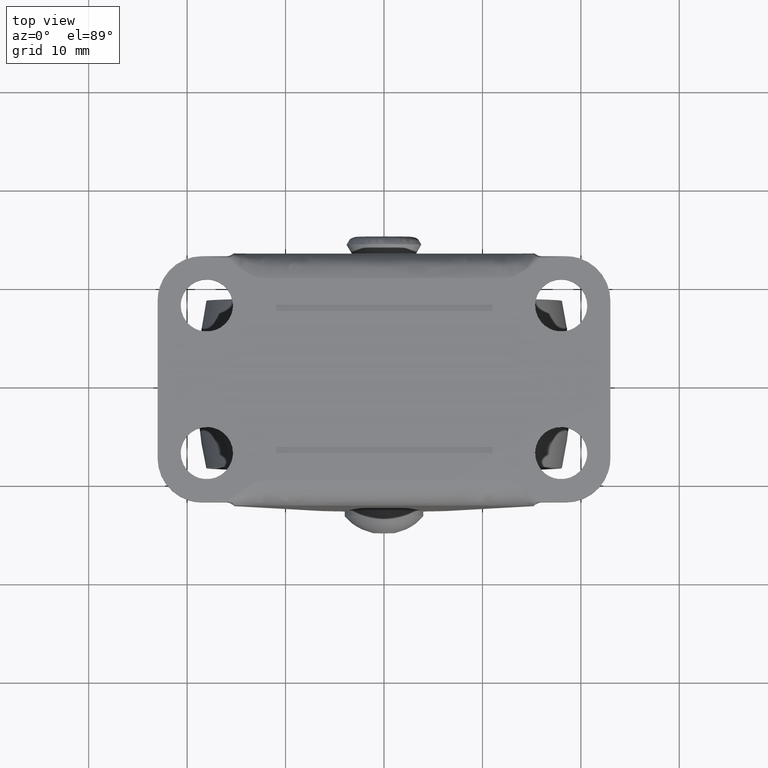
[diagram: clean part render]
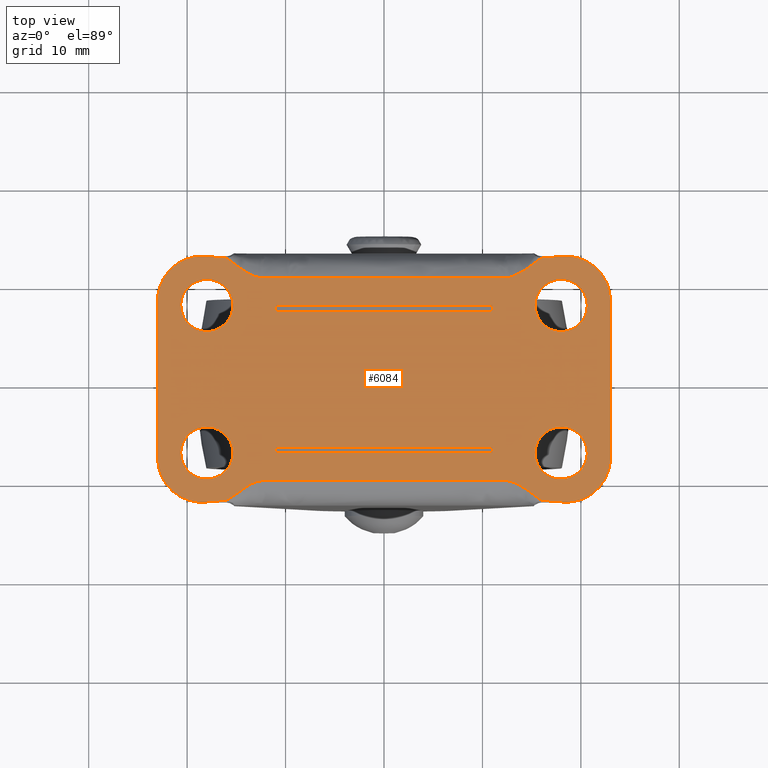
[diagram: same view with one face highlighted and labeled with its STEP entity id]
A machine part, top view. The second image highlights one B-rep face of the part: STEP entity #6084.
In plain terms, the highlighted face is a freeform B-spline surface patch.
Its self-contained STEP definition (entity closure, byte-faithful):
#2833=CARTESIAN_POINT('',(-18.312790721873618,-10.131475244859770,31.0));
#2834=VERTEX_POINT('',#2833);
#2835=CARTESIAN_POINT('',(-15.350000000000000,-7.500000000000000,31.0));
#2836=VERTEX_POINT('',#2835);
#2837=CARTESIAN_POINT('',(-18.312790721873625,-10.131475244859768,31.0));
#2838=CARTESIAN_POINT('',(-18.156943917111121,-10.149999999999997,30.999999999999996));
#2839=CARTESIAN_POINT('',(-18.0,-10.150000000000000,31.0));
#2840=CARTESIAN_POINT('',(-15.349999999999994,-10.149999999999999,31.000000000000007));
#2841=CARTESIAN_POINT('',(-15.350000000000000,-7.500000000000000,31.0));
#2849=(BOUNDED_CURVE()B_SPLINE_CURVE(2,(#2837,#2838,#2839,#2840,#2841),.UNSPECIFIED.,.F.,.U.)B_SPLINE_CURVE_WITH_KNOTS((3,2,3),(0.229562473511378,0.250000000000000,0.500000000000000),.UNSPECIFIED.)CURVE()GEOMETRIC_REPRESENTATION_ITEM()RATIONAL_B_SPLINE_CURVE((0.956026754179524,0.976055948328650,1.0,0.707106781186548,1.0))REPRESENTATION_ITEM(''));
#2850=EDGE_CURVE('',#2834,#2836,#2849,.T.);
#2852=CARTESIAN_POINT('',(-17.838221370159228,-4.854942784186543,31.0));
#2853=VERTEX_POINT('',#2852);
#2854=CARTESIAN_POINT('',(-15.350000000000000,-7.500000000000000,31.0));
#2855=CARTESIAN_POINT('',(-15.349999999999998,-5.007128922838514,31.000000000000004));
#2856=CARTESIAN_POINT('',(-17.838221370159228,-4.854942784186543,30.999999999999996));
#2864=(BOUNDED_CURVE()B_SPLINE_CURVE(2,(#2854,#2855,#2856),.UNSPECIFIED.,.F.,.U.)B_SPLINE_CURVE_WITH_KNOTS((3,3),(0.500000000000000,0.739332962232393),.UNSPECIFIED.)CURVE()GEOMETRIC_REPRESENTATION_ITEM()RATIONAL_B_SPLINE_CURVE((1.0,0.719603993294384,0.976072041652679))REPRESENTATION_ITEM(''));
#2865=EDGE_CURVE('',#2836,#2853,#2864,.T.);
#2932=CARTESIAN_POINT('',(-20.649999999999999,-7.500000000000000,31.0));
#2933=VERTEX_POINT('',#2932);
#2934=CARTESIAN_POINT('',(-20.649999999999999,-7.500000000000000,31.0));
#2935=CARTESIAN_POINT('',(-20.649999999999995,-9.853662493711292,30.999999999999996));
#2936=CARTESIAN_POINT('',(-18.312790721873625,-10.131475244859768,31.0));
#2944=(BOUNDED_CURVE()B_SPLINE_CURVE(2,(#2934,#2935,#2936),.UNSPECIFIED.,.F.,.U.)B_SPLINE_CURVE_WITH_KNOTS((3,3),(0.0,0.229562473511378),.UNSPECIFIED.)CURVE()GEOMETRIC_REPRESENTATION_ITEM()RATIONAL_B_SPLINE_CURVE((1.0,0.731050832857898,0.956026754179524))REPRESENTATION_ITEM(''));
#2945=EDGE_CURVE('',#2933,#2834,#2944,.T.);
#2979=CARTESIAN_POINT('',(-17.838221370159232,-4.854942784186543,31.0));
#2980=CARTESIAN_POINT('',(-17.919035177185130,-4.850000000000001,30.999999999999996));
#2981=CARTESIAN_POINT('',(-18.0,-4.850000000000001,31.0));
#2982=CARTESIAN_POINT('',(-20.650000000000002,-4.850000000000001,31.000000000000007));
#2983=CARTESIAN_POINT('',(-20.649999999999999,-7.500000000000000,31.0));
#2991=(BOUNDED_CURVE()B_SPLINE_CURVE(2,(#2979,#2980,#2981,#2982,#2983),.UNSPECIFIED.,.F.,.U.)B_SPLINE_CURVE_WITH_KNOTS((3,2,3),(0.739332962232392,0.750000000000000,1.0),.UNSPECIFIED.)CURVE()GEOMETRIC_REPRESENTATION_ITEM()RATIONAL_B_SPLINE_CURVE((0.976072041652678,0.987502787892163,1.0,0.707106781186548,1.0))REPRESENTATION_ITEM(''));
#2992=EDGE_CURVE('',#2853,#2933,#2991,.T.);
#3019=CARTESIAN_POINT('',(-18.312790721873629,4.868524755140232,31.0));
#3020=VERTEX_POINT('',#3019);
#3021=CARTESIAN_POINT('',(-15.350000000000000,7.500000000000000,31.0));
#3022=VERTEX_POINT('',#3021);
#3023=CARTESIAN_POINT('',(-18.312790721873629,4.868524755140232,31.000000000000004));
#3024=CARTESIAN_POINT('',(-18.156943917111125,4.850000000000001,31.0));
#3025=CARTESIAN_POINT('',(-18.0,4.850000000000001,31.0));
#3026=CARTESIAN_POINT('',(-15.349999999999994,4.850000000000001,31.000000000000007));
#3027=CARTESIAN_POINT('',(-15.350000000000000,7.500000000000000,31.0));
#3035=(BOUNDED_CURVE()B_SPLINE_CURVE(2,(#3023,#3024,#3025,#3026,#3027),.UNSPECIFIED.,.F.,.U.)B_SPLINE_CURVE_WITH_KNOTS((3,2,3),(0.229562473511378,0.250000000000000,0.500000000000000),.UNSPECIFIED.)CURVE()GEOMETRIC_REPRESENTATION_ITEM()RATIONAL_B_SPLINE_CURVE((0.956026754179524,0.976055948328649,1.0,0.707106781186548,1.0))REPRESENTATION_ITEM(''));
#3036=EDGE_CURVE('',#3020,#3022,#3035,.T.);
#3038=CARTESIAN_POINT('',(-17.838221370159228,10.145057215813461,31.0));
#3039=VERTEX_POINT('',#3038);
#3040=CARTESIAN_POINT('',(-15.350000000000000,7.500000000000000,31.0));
#3041=CARTESIAN_POINT('',(-15.349999999999998,9.992871077161485,31.000000000000004));
#3042=CARTESIAN_POINT('',(-17.838221370159228,10.145057215813457,30.999999999999996));
#3050=(BOUNDED_CURVE()B_SPLINE_CURVE(2,(#3040,#3041,#3042),.UNSPECIFIED.,.F.,.U.)B_SPLINE_CURVE_WITH_KNOTS((3,3),(0.500000000000000,0.739332962232393),.UNSPECIFIED.)CURVE()GEOMETRIC_REPRESENTATION_ITEM()RATIONAL_B_SPLINE_CURVE((1.0,0.719603993294384,0.976072041652679))REPRESENTATION_ITEM(''));
#3051=EDGE_CURVE('',#3022,#3039,#3050,.T.);
#3118=CARTESIAN_POINT('',(-20.649999999999999,7.500000000000000,31.0));
#3119=VERTEX_POINT('',#3118);
#3120=CARTESIAN_POINT('',(-20.649999999999999,7.500000000000000,31.0));
#3121=CARTESIAN_POINT('',(-20.649999999999995,5.146337506288706,30.999999999999996));
#3122=CARTESIAN_POINT('',(-18.312790721873625,4.868524755140232,31.0));
#3130=(BOUNDED_CURVE()B_SPLINE_CURVE(2,(#3120,#3121,#3122),.UNSPECIFIED.,.F.,.U.)B_SPLINE_CURVE_WITH_KNOTS((3,3),(0.0,0.229562473511378),.UNSPECIFIED.)CURVE()GEOMETRIC_REPRESENTATION_ITEM()RATIONAL_B_SPLINE_CURVE((1.0,0.731050832857898,0.956026754179524))REPRESENTATION_ITEM(''));
#3131=EDGE_CURVE('',#3119,#3020,#3130,.T.);
#3165=CARTESIAN_POINT('',(-17.838221370159232,10.145057215813457,31.000000000000004));
#3166=CARTESIAN_POINT('',(-17.919035177185130,10.149999999999999,30.999999999999993));
#3167=CARTESIAN_POINT('',(-18.0,10.150000000000000,31.0));
#3168=CARTESIAN_POINT('',(-20.650000000000002,10.149999999999999,31.000000000000007));
#3169=CARTESIAN_POINT('',(-20.649999999999999,7.500000000000000,31.0));
#3177=(BOUNDED_CURVE()B_SPLINE_CURVE(2,(#3165,#3166,#3167,#3168,#3169),.UNSPECIFIED.,.F.,.U.)B_SPLINE_CURVE_WITH_KNOTS((3,2,3),(0.739332962232392,0.750000000000000,1.0),.UNSPECIFIED.)CURVE()GEOMETRIC_REPRESENTATION_ITEM()RATIONAL_B_SPLINE_CURVE((0.976072041652678,0.987502787892163,1.0,0.707106781186548,1.0))REPRESENTATION_ITEM(''));
#3178=EDGE_CURVE('',#3039,#3119,#3177,.T.);
#3205=CARTESIAN_POINT('',(17.687209278126382,4.868524755140232,31.0));
#3206=VERTEX_POINT('',#3205);
#3207=CARTESIAN_POINT('',(20.649999999999999,7.500000000000000,31.0));
#3208=VERTEX_POINT('',#3207);
#3209=CARTESIAN_POINT('',(17.687209278126378,4.868524755140232,31.000000000000004));
#3210=CARTESIAN_POINT('',(17.843056082888872,4.850000000000001,30.999999999999996));
#3211=CARTESIAN_POINT('',(18.0,4.850000000000001,31.0));
#3212=CARTESIAN_POINT('',(20.650000000000002,4.850000000000001,31.000000000000007));
#3213=CARTESIAN_POINT('',(20.649999999999999,7.500000000000000,31.0));
#3221=(BOUNDED_CURVE()B_SPLINE_CURVE(2,(#3209,#3210,#3211,#3212,#3213),.UNSPECIFIED.,.F.,.U.)B_SPLINE_CURVE_WITH_KNOTS((3,2,3),(0.229562473511378,0.250000000000000,0.500000000000000),.UNSPECIFIED.)CURVE()GEOMETRIC_REPRESENTATION_ITEM()RATIONAL_B_SPLINE_CURVE((0.956026754179524,0.976055948328649,1.0,0.707106781186548,1.0))REPRESENTATION_ITEM(''));
#3222=EDGE_CURVE('',#3206,#3208,#3221,.T.);
#3224=CARTESIAN_POINT('',(18.161778629840772,10.145057215813461,31.0));
#3225=VERTEX_POINT('',#3224);
#3226=CARTESIAN_POINT('',(20.649999999999999,7.500000000000000,31.0));
#3227=CARTESIAN_POINT('',(20.650000000000002,9.992871077161485,31.000000000000004));
#3228=CARTESIAN_POINT('',(18.161778629840772,10.145057215813457,30.999999999999996));
#3236=(BOUNDED_CURVE()B_SPLINE_CURVE(2,(#3226,#3227,#3228),.UNSPECIFIED.,.F.,.U.)B_SPLINE_CURVE_WITH_KNOTS((3,3),(0.500000000000000,0.739332962232393),.UNSPECIFIED.)CURVE()GEOMETRIC_REPRESENTATION_ITEM()RATIONAL_B_SPLINE_CURVE((1.0,0.719603993294384,0.976072041652679))REPRESENTATION_ITEM(''));
#3237=EDGE_CURVE('',#3208,#3225,#3236,.T.);
#3304=CARTESIAN_POINT('',(15.350000000000000,7.500000000000000,31.0));
#3305=VERTEX_POINT('',#3304);
#3306=CARTESIAN_POINT('',(15.350000000000000,7.500000000000000,31.0));
#3307=CARTESIAN_POINT('',(15.349999999999996,5.146337506288711,31.000000000000007));
#3308=CARTESIAN_POINT('',(17.687209278126375,4.868524755140232,31.0));
#3316=(BOUNDED_CURVE()B_SPLINE_CURVE(2,(#3306,#3307,#3308),.UNSPECIFIED.,.F.,.U.)B_SPLINE_CURVE_WITH_KNOTS((3,3),(0.0,0.229562473511378),.UNSPECIFIED.)CURVE()GEOMETRIC_REPRESENTATION_ITEM()RATIONAL_B_SPLINE_CURVE((1.0,0.731050832857899,0.956026754179524))REPRESENTATION_ITEM(''));
#3317=EDGE_CURVE('',#3305,#3206,#3316,.T.);
#3351=CARTESIAN_POINT('',(18.161778629840772,10.145057215813457,30.999999999999996));
#3352=CARTESIAN_POINT('',(18.080964822814863,10.149999999999993,31.000000000000004));
#3353=CARTESIAN_POINT('',(18.0,10.150000000000000,31.0));
#3354=CARTESIAN_POINT('',(15.349999999999994,10.149999999999999,31.000000000000007));
#3355=CARTESIAN_POINT('',(15.350000000000000,7.500000000000000,31.0));
#3363=(BOUNDED_CURVE()B_SPLINE_CURVE(2,(#3351,#3352,#3353,#3354,#3355),.UNSPECIFIED.,.F.,.U.)B_SPLINE_CURVE_WITH_KNOTS((3,2,3),(0.739332962232393,0.750000000000000,1.0),.UNSPECIFIED.)CURVE()GEOMETRIC_REPRESENTATION_ITEM()RATIONAL_B_SPLINE_CURVE((0.976072041652679,0.987502787892163,1.0,0.707106781186548,1.0))REPRESENTATION_ITEM(''));
#3364=EDGE_CURVE('',#3225,#3305,#3363,.T.);
#3391=CARTESIAN_POINT('',(17.687209278126382,-10.131475244859770,31.0));
#3392=VERTEX_POINT('',#3391);
#3393=CARTESIAN_POINT('',(20.649999999999999,-7.500000000000000,31.0));
#3394=VERTEX_POINT('',#3393);
#3395=CARTESIAN_POINT('',(17.687209278126371,-10.131475244859768,31.0));
#3396=CARTESIAN_POINT('',(17.843056082888875,-10.149999999999997,30.999999999999996));
#3397=CARTESIAN_POINT('',(18.0,-10.150000000000000,31.0));
#3398=CARTESIAN_POINT('',(20.650000000000002,-10.149999999999999,31.000000000000007));
#3399=CARTESIAN_POINT('',(20.649999999999999,-7.500000000000000,31.0));
#3407=(BOUNDED_CURVE()B_SPLINE_CURVE(2,(#3395,#3396,#3397,#3398,#3399),.UNSPECIFIED.,.F.,.U.)B_SPLINE_CURVE_WITH_KNOTS((3,2,3),(0.229562473511378,0.250000000000000,0.500000000000000),.UNSPECIFIED.)CURVE()GEOMETRIC_REPRESENTATION_ITEM()RATIONAL_B_SPLINE_CURVE((0.956026754179524,0.976055948328650,1.0,0.707106781186548,1.0))REPRESENTATION_ITEM(''));
#3408=EDGE_CURVE('',#3392,#3394,#3407,.T.);
#3410=CARTESIAN_POINT('',(18.161778629840772,-4.854942784186543,31.0));
#3411=VERTEX_POINT('',#3410);
#3412=CARTESIAN_POINT('',(20.649999999999999,-7.500000000000000,31.0));
#3413=CARTESIAN_POINT('',(20.650000000000002,-5.007128922838514,31.000000000000004));
#3414=CARTESIAN_POINT('',(18.161778629840772,-4.854942784186543,30.999999999999996));
#3422=(BOUNDED_CURVE()B_SPLINE_CURVE(2,(#3412,#3413,#3414),.UNSPECIFIED.,.F.,.U.)B_SPLINE_CURVE_WITH_KNOTS((3,3),(0.500000000000000,0.739332962232393),.UNSPECIFIED.)CURVE()GEOMETRIC_REPRESENTATION_ITEM()RATIONAL_B_SPLINE_CURVE((1.0,0.719603993294384,0.976072041652679))REPRESENTATION_ITEM(''));
#3423=EDGE_CURVE('',#3394,#3411,#3422,.T.);
#3490=CARTESIAN_POINT('',(15.350000000000000,-7.500000000000000,31.0));
#3491=VERTEX_POINT('',#3490);
#3492=CARTESIAN_POINT('',(15.350000000000000,-7.500000000000000,31.0));
#3493=CARTESIAN_POINT('',(15.349999999999993,-9.853662493711292,30.999999999999996));
#3494=CARTESIAN_POINT('',(17.687209278126371,-10.131475244859768,31.0));
#3502=(BOUNDED_CURVE()B_SPLINE_CURVE(2,(#3492,#3493,#3494),.UNSPECIFIED.,.F.,.U.)B_SPLINE_CURVE_WITH_KNOTS((3,3),(0.0,0.229562473511378),.UNSPECIFIED.)CURVE()GEOMETRIC_REPRESENTATION_ITEM()RATIONAL_B_SPLINE_CURVE((1.0,0.731050832857898,0.956026754179524))REPRESENTATION_ITEM(''));
#3503=EDGE_CURVE('',#3491,#3392,#3502,.T.);
#3537=CARTESIAN_POINT('',(18.161778629840772,-4.854942784186543,30.999999999999996));
#3538=CARTESIAN_POINT('',(18.080964822814863,-4.850000000000001,31.000000000000004));
#3539=CARTESIAN_POINT('',(18.0,-4.850000000000001,31.0));
#3540=CARTESIAN_POINT('',(15.349999999999994,-4.850000000000001,31.000000000000007));
#3541=CARTESIAN_POINT('',(15.350000000000000,-7.500000000000000,31.0));
#3549=(BOUNDED_CURVE()B_SPLINE_CURVE(2,(#3537,#3538,#3539,#3540,#3541),.UNSPECIFIED.,.F.,.U.)B_SPLINE_CURVE_WITH_KNOTS((3,2,3),(0.739332962232393,0.750000000000000,1.0),.UNSPECIFIED.)CURVE()GEOMETRIC_REPRESENTATION_ITEM()RATIONAL_B_SPLINE_CURVE((0.976072041652679,0.987502787892163,1.0,0.707106781186548,1.0))REPRESENTATION_ITEM(''));
#3550=EDGE_CURVE('',#3411,#3491,#3549,.T.);
#4307=CARTESIAN_POINT('',(-15.964142842854351,12.300000000000001,31.0));
#4308=VERTEX_POINT('',#4307);
#4324=CARTESIAN_POINT('',(-18.500000000000000,12.500000000000000,31.0));
#4325=VERTEX_POINT('',#4324);
#4336=CARTESIAN_POINT('',(-15.964142842854351,12.300000000000001,31.0));
#4337=CARTESIAN_POINT('',(-16.384151414186089,12.301612027730590,31.0));
#4338=CARTESIAN_POINT('',(-16.804190988273461,12.367057069457900,31.0));
#4339=CARTESIAN_POINT('',(-17.224214769195601,12.399984829569480,31.0));
#4340=CARTESIAN_POINT('',(-17.649476512797079,12.433323219712991,31.0));
#4341=CARTESIAN_POINT('',(-18.074738256398511,12.466661609856491,31.0));
#4342=CARTESIAN_POINT('',(-18.500000000000000,12.500000000000000,31.0));
#4343=B_SPLINE_CURVE_WITH_KNOTS('',3,(#4336,#4337,#4338,#4339,#4340,#4341,#4342),.UNSPECIFIED.,.F.,.U.,(4,3,4),(0.006158516205735,0.500000000000000,1.0),.UNSPECIFIED.);
#4344=EDGE_CURVE('',#4308,#4325,#4343,.T.);
#4487=CARTESIAN_POINT('',(15.964142842854200,12.300000000000001,31.0));
#4488=VERTEX_POINT('',#4487);
#4521=CARTESIAN_POINT('',(15.964142842854200,12.300000000000001,31.0));
#4522=CARTESIAN_POINT('',(15.511861407879140,11.964925629788480,30.999999999999979));
#4523=CARTESIAN_POINT('',(15.059579972904080,11.629851259576951,31.000000000000011));
#4524=CARTESIAN_POINT('',(14.607298537929010,11.294776889365430,31.000000000000011));
#4525=CARTESIAN_POINT('',(14.385741908905979,11.130635843115829,31.000000000000011));
#4526=CARTESIAN_POINT('',(14.150449448904590,10.984890928707269,31.0));
#4527=CARTESIAN_POINT('',(13.915372177291781,10.841278085975910,31.0));
#4528=CARTESIAN_POINT('',(13.777721915578629,10.757185118366930,31.0));
#4529=CARTESIAN_POINT('',(13.633514898960200,10.683853875912639,31.0));
#4530=CARTESIAN_POINT('',(13.488876333202381,10.612753854443000,31.0));
#4531=CARTESIAN_POINT('',(13.116823397996979,10.429863685819249,30.999999999999989));
#4532=CARTESIAN_POINT('',(12.706289696635141,10.305846311783871,31.000004061068061));
#4533=CARTESIAN_POINT('',(12.289555121366140,10.302929370201980,30.999998709542229));
#4534=CARTESIAN_POINT('',(6.827798270337854,10.264699699292910,30.999928572014461));
#4535=CARTESIAN_POINT('',(1.365238646426925,10.341158914930880,30.999953488652910));
#4536=CARTESIAN_POINT('',(-4.096518208739660,10.302929349153080,30.999998283782119));
#4537=CARTESIAN_POINT('',(-6.827396635851608,10.283814566267470,31.000020681346719));
#4538=CARTESIAN_POINT('',(-9.558435617041745,10.287637469250480,30.999959751792439));
#4539=CARTESIAN_POINT('',(-12.289554872446489,10.302929359002039,30.999998709548649));
#4540=CARTESIAN_POINT('',(-12.685687898981341,10.305147359024099,31.000004360145500));
#4541=CARTESIAN_POINT('',(-13.072374911336331,10.419033238515070,31.0));
#4542=CARTESIAN_POINT('',(-13.429587845199270,10.584998504233040,31.0));
#4543=CARTESIAN_POINT('',(-13.934560261795850,10.819614536733290,31.0));
#4544=CARTESIAN_POINT('',(-14.394545896968699,11.137703681644680,31.0));
#4545=CARTESIAN_POINT('',(-14.843212241036589,11.464658990664031,31.0));
#4546=CARTESIAN_POINT('',(-15.219804861036080,11.739092226127990,31.0));
#4547=CARTESIAN_POINT('',(-15.588455725924881,12.024366267953640,31.0));
#4548=CARTESIAN_POINT('',(-15.964142842854351,12.300000000000001,31.0));
#4549=B_SPLINE_CURVE_WITH_KNOTS('',3,(#4521,#4522,#4523,#4524,#4525,#4526,#4527,#4528,#4529,#4530,#4531,#4532,#4533,#4534,#4535,#4536,#4537,#4538,#4539,#4540,#4541,#4542,#4543,#4544,#4545,#4546,#4547,#4548),.UNSPECIFIED.,.F.,.U.,(4,3,3,3,3,3,3,3,3,4),(0.0,1.688638495937405,2.515842585840058,3.000214633737721,4.246162014421257,20.575648566086461,28.740391840509840,29.924640553844789,31.598748286051400,33.003927491866072),.UNSPECIFIED.);
#4550=EDGE_CURVE('',#4488,#4308,#4549,.T.);
#4654=CARTESIAN_POINT('',(18.500000000000000,12.500000000000000,31.0));
#4655=VERTEX_POINT('',#4654);
#4656=CARTESIAN_POINT('',(18.500000000000000,12.500000000000000,31.0));
#4657=CARTESIAN_POINT('',(18.071408863903219,12.466640982033949,31.0));
#4658=CARTESIAN_POINT('',(17.642817727806449,12.433281964067911,31.0));
#4659=CARTESIAN_POINT('',(17.214226591709679,12.399922946101860,31.0));
#4660=CARTESIAN_POINT('',(16.797532973632588,12.367489961093421,31.0));
#4661=CARTESIAN_POINT('',(16.380804597317510,12.303548462719570,31.0));
#4662=CARTESIAN_POINT('',(15.964142842854200,12.300000000000001,31.0));
#4663=B_SPLINE_CURVE_WITH_KNOTS('',3,(#4656,#4657,#4658,#4659,#4660,#4661,#4662),.UNSPECIFIED.,.F.,.U.,(4,3,4),(0.0,0.500000000000000,0.986120200562185),.UNSPECIFIED.);
#4664=EDGE_CURVE('',#4655,#4488,#4663,.T.);
#4718=CARTESIAN_POINT('',(15.964142842854301,-12.300000000000001,31.0));
#4719=VERTEX_POINT('',#4718);
#4735=CARTESIAN_POINT('',(18.500000000000000,-12.500000000000000,31.0));
#4736=VERTEX_POINT('',#4735);
#4747=CARTESIAN_POINT('',(15.964142842854301,-12.300000000000001,31.0));
#4748=CARTESIAN_POINT('',(16.384151414186000,-12.301612027730609,31.0));
#4749=CARTESIAN_POINT('',(16.804190988273341,-12.367057069457911,31.0));
#4750=CARTESIAN_POINT('',(17.224214769195498,-12.399984829569471,31.0));
#4751=CARTESIAN_POINT('',(17.649476512797019,-12.433323219712991,31.0));
#4752=CARTESIAN_POINT('',(18.074738256398479,-12.466661609856491,31.0));
#4753=CARTESIAN_POINT('',(18.500000000000000,-12.500000000000000,31.0));
#4754=B_SPLINE_CURVE_WITH_KNOTS('',3,(#4747,#4748,#4749,#4750,#4751,#4752,#4753),.UNSPECIFIED.,.F.,.U.,(4,3,4),(0.006158516205813,0.500000000000000,1.0),.UNSPECIFIED.);
#4755=EDGE_CURVE('',#4719,#4736,#4754,.T.);
#4898=CARTESIAN_POINT('',(-15.964142842854450,-12.300000000000001,31.0));
#4899=VERTEX_POINT('',#4898);
#4932=CARTESIAN_POINT('',(-15.964142842854450,-12.300000000000001,31.0));
#4933=CARTESIAN_POINT('',(-15.742509219500960,-12.134309785737960,31.0));
#4934=CARTESIAN_POINT('',(-15.520875596147450,-11.968619571475889,31.0));
#4935=CARTESIAN_POINT('',(-15.299241972793910,-11.802929357213801,31.0));
#4936=CARTESIAN_POINT('',(-14.296013036583970,-11.052929357757989,31.0));
#4937=CARTESIAN_POINT('',(-13.292784100374041,-10.302929358302180,31.0));
#4938=CARTESIAN_POINT('',(-12.289555121002090,-10.302929357890360,31.0));
#4939=CARTESIAN_POINT('',(-4.096518456131290,-10.302929354527230,31.0));
#4940=CARTESIAN_POINT('',(4.096518208739607,-10.302929351164099,31.0));
#4941=CARTESIAN_POINT('',(12.289554873610591,-10.302929347800960,31.0));
#4942=CARTESIAN_POINT('',(13.292783852982531,-10.302929347389149,31.0));
#4943=CARTESIAN_POINT('',(14.296012875516491,-11.052929346021340,31.0));
#4944=CARTESIAN_POINT('',(15.299241898050450,-11.802929344653521,31.0));
#4945=CARTESIAN_POINT('',(15.520875546318379,-11.968619563102370,31.0));
#4946=CARTESIAN_POINT('',(15.742509194586329,-12.134309781551201,31.0));
#4947=CARTESIAN_POINT('',(15.964142842854301,-12.300000000000001,31.0));
#4948=B_SPLINE_CURVE_WITH_KNOTS('',3,(#4932,#4933,#4934,#4935,#4936,#4937,#4938,#4939,#4940,#4941,#4942,#4943,#4944,#4945,#4946,#4947),.UNSPECIFIED.,.F.,.U.,(4,3,3,3,3,4),(0.020218265075259,0.040201004498246,0.130653265804778,0.869346733141461,0.959798994447994,0.979781734397861),.UNSPECIFIED.);
#4949=EDGE_CURVE('',#4899,#4719,#4948,.T.);
#5053=CARTESIAN_POINT('',(-18.500000000000000,-12.500000000000000,31.0));
#5054=VERTEX_POINT('',#5053);
#5055=CARTESIAN_POINT('',(-18.500000000000000,-12.500000000000000,31.0));
#5056=CARTESIAN_POINT('',(-18.071408863903262,-12.466640982033949,31.0));
#5057=CARTESIAN_POINT('',(-17.642817727806470,-12.433281964067911,31.0));
#5058=CARTESIAN_POINT('',(-17.214226591709721,-12.399922946101849,31.0));
#5059=CARTESIAN_POINT('',(-16.797532973632709,-12.367489961093421,31.0));
#5060=CARTESIAN_POINT('',(-16.380804597317699,-12.303548462719579,31.0));
#5061=CARTESIAN_POINT('',(-15.964142842854450,-12.300000000000001,31.0));
#5062=B_SPLINE_CURVE_WITH_KNOTS('',3,(#5055,#5056,#5057,#5058,#5059,#5060,#5061),.UNSPECIFIED.,.F.,.U.,(4,3,4),(0.0,0.500000000000000,0.986120200562146),.UNSPECIFIED.);
#5063=EDGE_CURVE('',#5054,#4899,#5062,.T.);
#5516=CARTESIAN_POINT('',(11.0,7.500000000000000,31.0));
#5517=VERTEX_POINT('',#5516);
#5518=CARTESIAN_POINT('',(-11.0,7.500000000000000,31.0));
#5519=VERTEX_POINT('',#5518);
#5520=CARTESIAN_POINT('',(11.0,7.500000000000000,31.0));
#5521=CARTESIAN_POINT('',(-11.0,7.500000000000000,31.0));
#5522=QUASI_UNIFORM_CURVE('',1,(#5520,#5521),.UNSPECIFIED.,.F.,.U.);
#5523=EDGE_CURVE('',#5517,#5519,#5522,.T.);
#5544=CARTESIAN_POINT('',(11.0,6.900002000000000,31.0));
#5545=VERTEX_POINT('',#5544);
#5546=CARTESIAN_POINT('',(11.0,6.900002000000000,31.0));
#5547=CARTESIAN_POINT('',(11.0,7.500000000000000,31.0));
#5548=QUASI_UNIFORM_CURVE('',1,(#5546,#5547),.UNSPECIFIED.,.F.,.U.);
#5549=EDGE_CURVE('',#5545,#5517,#5548,.T.);
#5566=CARTESIAN_POINT('',(-11.0,6.900002000000000,31.0));
#5567=VERTEX_POINT('',#5566);
#5568=CARTESIAN_POINT('',(-11.0,6.900002000000000,31.0));
#5569=CARTESIAN_POINT('',(11.0,6.900002000000000,31.0));
#5570=QUASI_UNIFORM_CURVE('',1,(#5568,#5569),.UNSPECIFIED.,.F.,.U.);
#5571=EDGE_CURVE('',#5567,#5545,#5570,.T.);
#5588=CARTESIAN_POINT('',(-11.0,7.500000000000000,31.0));
#5589=CARTESIAN_POINT('',(-11.0,6.900002000000000,31.0));
#5590=QUASI_UNIFORM_CURVE('',1,(#5588,#5589),.UNSPECIFIED.,.F.,.U.);
#5591=EDGE_CURVE('',#5519,#5567,#5590,.T.);
#5640=CARTESIAN_POINT('',(-11.0,-7.500000000000000,31.0));
#5641=VERTEX_POINT('',#5640);
#5642=CARTESIAN_POINT('',(11.0,-7.500000000000000,31.0));
#5643=VERTEX_POINT('',#5642);
#5644=CARTESIAN_POINT('',(-11.0,-7.500000000000000,31.0));
#5645=CARTESIAN_POINT('',(11.0,-7.500000000000000,31.0));
#5646=QUASI_UNIFORM_CURVE('',1,(#5644,#5645),.UNSPECIFIED.,.F.,.U.);
#5647=EDGE_CURVE('',#5641,#5643,#5646,.T.);
#5668=CARTESIAN_POINT('',(-11.0,-6.900002000000000,31.0));
#5669=VERTEX_POINT('',#5668);
#5670=CARTESIAN_POINT('',(-11.0,-6.900002000000000,31.0));
#5671=CARTESIAN_POINT('',(-11.0,-7.500000000000000,31.0));
#5672=QUASI_UNIFORM_CURVE('',1,(#5670,#5671),.UNSPECIFIED.,.F.,.U.);
#5673=EDGE_CURVE('',#5669,#5641,#5672,.T.);
#5690=CARTESIAN_POINT('',(11.0,-6.900002000000000,31.0));
#5691=VERTEX_POINT('',#5690);
#5692=CARTESIAN_POINT('',(11.0,-6.900002000000000,31.0));
#5693=CARTESIAN_POINT('',(-11.0,-6.900002000000000,31.0));
#5694=QUASI_UNIFORM_CURVE('',1,(#5692,#5693),.UNSPECIFIED.,.F.,.U.);
#5695=EDGE_CURVE('',#5691,#5669,#5694,.T.);
#5712=CARTESIAN_POINT('',(11.0,-7.500000000000000,31.0));
#5713=CARTESIAN_POINT('',(11.0,-6.900002000000000,31.0));
#5714=QUASI_UNIFORM_CURVE('',1,(#5712,#5713),.UNSPECIFIED.,.F.,.U.);
#5715=EDGE_CURVE('',#5643,#5691,#5714,.T.);
#5965=CARTESIAN_POINT('',(-25.297699910843079,13.748749951545150,31.0));
#5966=CARTESIAN_POINT('',(25.297701144659229,13.748749951545150,31.0));
#5967=CARTESIAN_POINT('',(-25.297699910843079,-13.748750622097401,31.0));
#5968=CARTESIAN_POINT('',(25.297701144659229,-13.748750622097401,31.0));
#5969=B_SPLINE_SURFACE_WITH_KNOTS('',1,1,((#5965,#5967),(#5966,#5968)),.UNSPECIFIED.,.F.,.F.,.U.,(2,2),(2,2),(0.0,50.595401055502307),(0.0,27.497500573642551),.UNSPECIFIED.);
#5970=ORIENTED_EDGE('',*,*,#4550,.T.);
#5971=ORIENTED_EDGE('',*,*,#4344,.T.);
#5972=CARTESIAN_POINT('',(-23.0,8.0,31.0));
#5973=VERTEX_POINT('',#5972);
#5974=CARTESIAN_POINT('',(-18.500000000000000,12.500000000000000,31.0));
#5975=CARTESIAN_POINT('',(-22.999999999999996,12.499999999999998,30.999999999999996));
#5976=CARTESIAN_POINT('',(-23.0,8.0,31.0));
#5984=(BOUNDED_CURVE()B_SPLINE_CURVE(2,(#5974,#5975,#5976),.UNSPECIFIED.,.F.,.U.)CURVE()GEOMETRIC_REPRESENTATION_ITEM()QUASI_UNIFORM_CURVE()RATIONAL_B_SPLINE_CURVE((1.0,0.707106781186547,1.0))REPRESENTATION_ITEM(''));
#5985=EDGE_CURVE('',#4325,#5973,#5984,.T.);
#5986=ORIENTED_EDGE('',*,*,#5985,.T.);
#5987=CARTESIAN_POINT('',(-23.0,-8.0,31.0));
#5988=VERTEX_POINT('',#5987);
#5989=CARTESIAN_POINT('',(-23.0,8.0,31.0));
#5990=CARTESIAN_POINT('',(-23.0,-8.0,31.0));
#5991=QUASI_UNIFORM_CURVE('',1,(#5989,#5990),.UNSPECIFIED.,.F.,.U.);
#5992=EDGE_CURVE('',#5973,#5988,#5991,.T.);
#5993=ORIENTED_EDGE('',*,*,#5992,.T.);
#5994=CARTESIAN_POINT('',(-23.0,-8.0,31.0));
#5995=CARTESIAN_POINT('',(-22.999999999999996,-12.499999999999998,30.999999999999996));
#5996=CARTESIAN_POINT('',(-18.500000000000000,-12.500000000000000,31.0));
#6004=(BOUNDED_CURVE()B_SPLINE_CURVE(2,(#5994,#5995,#5996),.UNSPECIFIED.,.F.,.U.)CURVE()GEOMETRIC_REPRESENTATION_ITEM()QUASI_UNIFORM_CURVE()RATIONAL_B_SPLINE_CURVE((1.0,0.707106781186547,1.0))REPRESENTATION_ITEM(''));
#6005=EDGE_CURVE('',#5988,#5054,#6004,.T.);
#6006=ORIENTED_EDGE('',*,*,#6005,.T.);
#6007=ORIENTED_EDGE('',*,*,#5063,.T.);
#6008=ORIENTED_EDGE('',*,*,#4949,.T.);
#6009=ORIENTED_EDGE('',*,*,#4755,.T.);
#6010=CARTESIAN_POINT('',(23.0,-8.0,31.0));
#6011=VERTEX_POINT('',#6010);
#6012=CARTESIAN_POINT('',(18.500000000000000,-12.500000000000000,31.0));
#6013=CARTESIAN_POINT('',(22.999999999999996,-12.499999999999998,30.999999999999996));
#6014=CARTESIAN_POINT('',(23.0,-8.0,31.0));
#6022=(BOUNDED_CURVE()B_SPLINE_CURVE(2,(#6012,#6013,#6014),.UNSPECIFIED.,.F.,.U.)CURVE()GEOMETRIC_REPRESENTATION_ITEM()QUASI_UNIFORM_CURVE()RATIONAL_B_SPLINE_CURVE((1.0,0.707106781186547,1.0))REPRESENTATION_ITEM(''));
#6023=EDGE_CURVE('',#4736,#6011,#6022,.T.);
#6024=ORIENTED_EDGE('',*,*,#6023,.T.);
#6025=CARTESIAN_POINT('',(23.0,8.0,31.0));
#6026=VERTEX_POINT('',#6025);
#6027=CARTESIAN_POINT('',(23.0,-8.0,31.0));
#6028=CARTESIAN_POINT('',(23.0,8.0,31.0));
#6029=QUASI_UNIFORM_CURVE('',1,(#6027,#6028),.UNSPECIFIED.,.F.,.U.);
#6030=EDGE_CURVE('',#6011,#6026,#6029,.T.);
#6031=ORIENTED_EDGE('',*,*,#6030,.T.);
#6032=CARTESIAN_POINT('',(23.0,8.0,31.0));
#6033=CARTESIAN_POINT('',(22.999999999999996,12.499999999999998,30.999999999999996));
#6034=CARTESIAN_POINT('',(18.500000000000000,12.500000000000000,31.0));
#6042=(BOUNDED_CURVE()B_SPLINE_CURVE(2,(#6032,#6033,#6034),.UNSPECIFIED.,.F.,.U.)CURVE()GEOMETRIC_REPRESENTATION_ITEM()QUASI_UNIFORM_CURVE()RATIONAL_B_SPLINE_CURVE((1.0,0.707106781186547,1.0))REPRESENTATION_ITEM(''));
#6043=EDGE_CURVE('',#6026,#4655,#6042,.T.);
#6044=ORIENTED_EDGE('',*,*,#6043,.T.);
#6045=ORIENTED_EDGE('',*,*,#4664,.T.);
#6046=EDGE_LOOP('',(#5970,#5971,#5986,#5993,#6006,#6007,#6008,#6009,#6024,#6031,#6044,#6045));
#6047=FACE_OUTER_BOUND('',#6046,.T.);
#6048=ORIENTED_EDGE('',*,*,#5715,.F.);
#6049=ORIENTED_EDGE('',*,*,#5647,.F.);
#6050=ORIENTED_EDGE('',*,*,#5673,.F.);
#6051=ORIENTED_EDGE('',*,*,#5695,.F.);
#6052=EDGE_LOOP('',(#6048,#6049,#6050,#6051));
#6053=FACE_BOUND('',#6052,.T.);
#6054=ORIENTED_EDGE('',*,*,#5591,.F.);
#6055=ORIENTED_EDGE('',*,*,#5523,.F.);
#6056=ORIENTED_EDGE('',*,*,#5549,.F.);
#6057=ORIENTED_EDGE('',*,*,#5571,.F.);
#6058=EDGE_LOOP('',(#6054,#6055,#6056,#6057));
#6059=FACE_BOUND('',#6058,.T.);
#6060=ORIENTED_EDGE('',*,*,#3423,.F.);
#6061=ORIENTED_EDGE('',*,*,#3408,.F.);
#6062=ORIENTED_EDGE('',*,*,#3503,.F.);
#6063=ORIENTED_EDGE('',*,*,#3550,.F.);
#6064=EDGE_LOOP('',(#6060,#6061,#6062,#6063));
#6065=FACE_BOUND('',#6064,.T.);
#6066=ORIENTED_EDGE('',*,*,#3237,.F.);
#6067=ORIENTED_EDGE('',*,*,#3222,.F.);
#6068=ORIENTED_EDGE('',*,*,#3317,.F.);
#6069=ORIENTED_EDGE('',*,*,#3364,.F.);
#6070=EDGE_LOOP('',(#6066,#6067,#6068,#6069));
#6071=FACE_BOUND('',#6070,.T.);
#6072=ORIENTED_EDGE('',*,*,#3051,.F.);
#6073=ORIENTED_EDGE('',*,*,#3036,.F.);
#6074=ORIENTED_EDGE('',*,*,#3131,.F.);
#6075=ORIENTED_EDGE('',*,*,#3178,.F.);
#6076=EDGE_LOOP('',(#6072,#6073,#6074,#6075));
#6077=FACE_BOUND('',#6076,.T.);
#6078=ORIENTED_EDGE('',*,*,#2865,.F.);
#6079=ORIENTED_EDGE('',*,*,#2850,.F.);
#6080=ORIENTED_EDGE('',*,*,#2945,.F.);
#6081=ORIENTED_EDGE('',*,*,#2992,.F.);
#6082=EDGE_LOOP('',(#6078,#6079,#6080,#6081));
#6083=FACE_BOUND('',#6082,.T.);
#6084=ADVANCED_FACE('',(#6047,#6053,#6059,#6065,#6071,#6077,#6083),#5969,.F.);